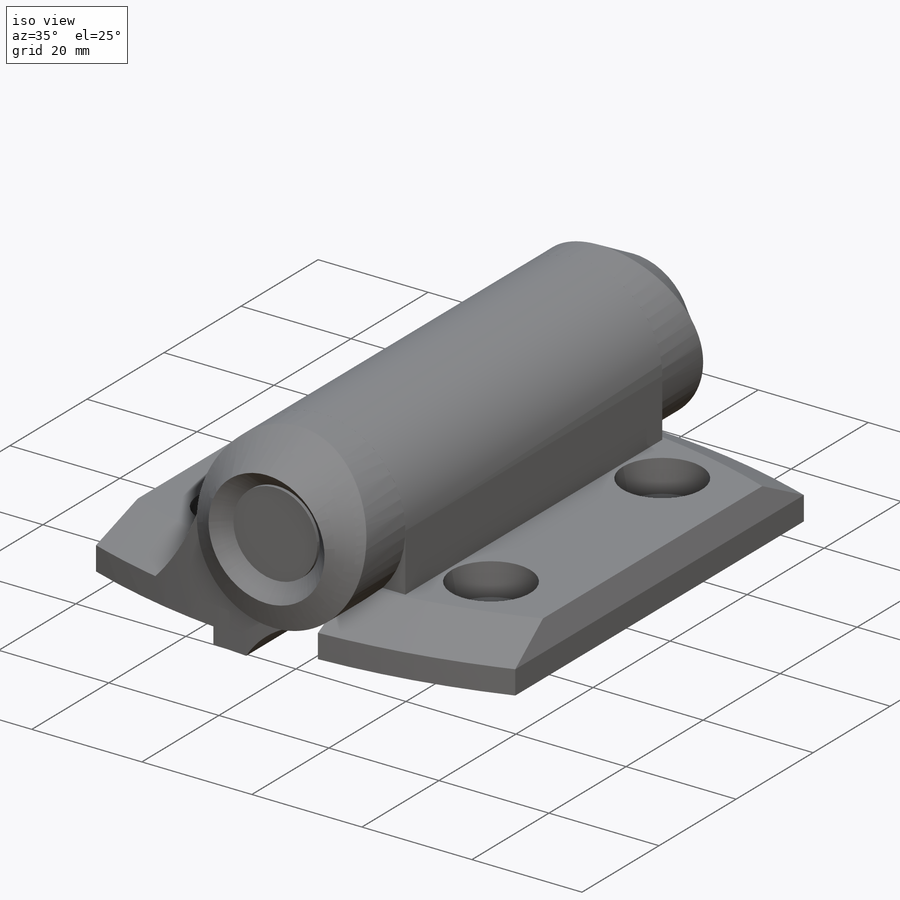
[diagram: iso view]
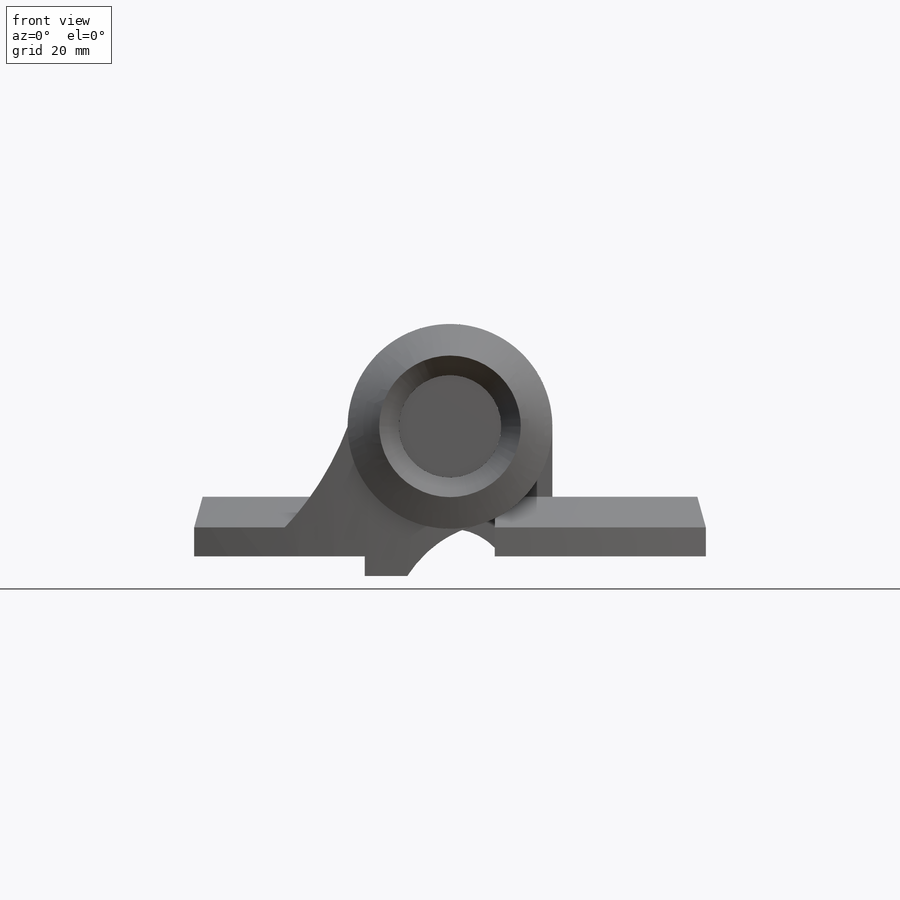
[diagram: front view]
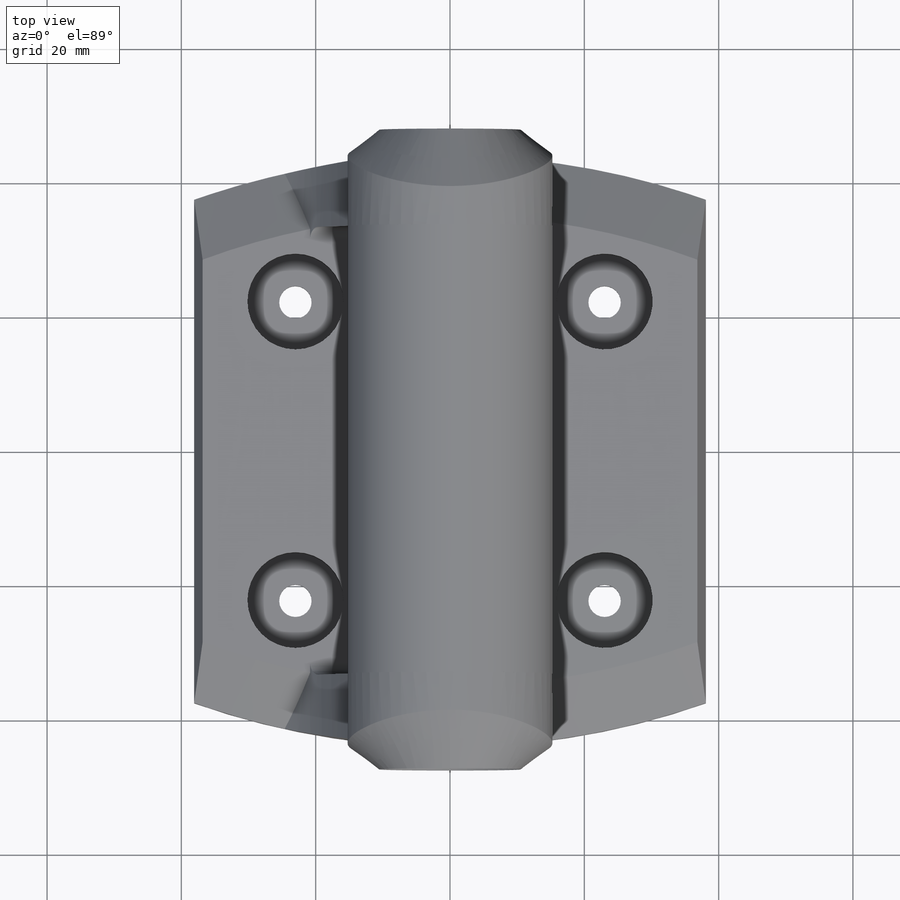
[diagram: top view]
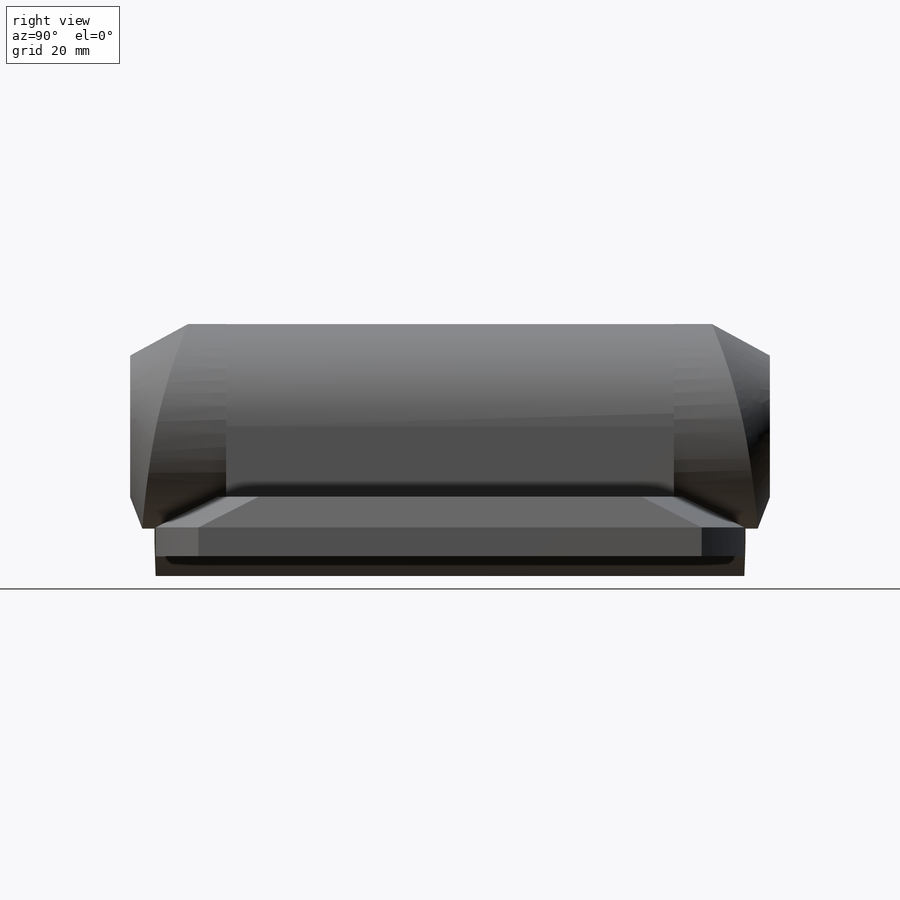
[diagram: right view]
SOLIDWORKS PART (.sldprt)
format: sldprt  version: not decoded by parser v0  size: 1,590,784 bytes
history: native  units: mm
features: sketch x25, cut_extrude x11, extrude x7, chamfer x4, mirror x3, delete_body x2, boolean_combine x2, material x1, fillet x1, surface_op x1, move_body x1 + 1 further entry (+15 scaffold rows collapsed)
feature tree (74):
  scaffold x15  (default folders/planes/origin — collapsed)
  material  "Material <not specified>"
  "Design Table"
  sketch  "Sketch1"  dims[c1.dia=30.48mm c1.pin dia=15.24mm c1.D11=44.45mm c1.D2=8.89mm c1.D3=34.6075mm c1.D4=38.1mm c1.D5=31.4325mm c1.D6=19.8755mm c1.D7=6.35mm c1.D8=25.4mm c1.D9=76.2mm c1.D10=~3.93192mm c2.D4=2.921mm c2.D12=1.27mm]
  sketch  "Sketch2"
  extrude  "Boss-Extrude1"  Depth=95.25mm
  sketch  "Sketch3"
  extrude  "Boss-Extrude2"  [1 undecoded]
  sketch  "Sketch4"
  cut_extrude  "Cut-Extrude1"  Depth=66.675mm
  sketch  "Sketch5"
  cut_extrude  "Cut-Extrude2"  [1 undecoded]
  cut_extrude  "Cut-Extrude3"  [1 undecoded]
  sketch  "Sketch5<3>"
  sketch  "Sketch7"  dims[D1=0.0mm]
  cut_extrude  "Cut-Extrude4"  Depth=3.6195mm
  cut_extrude  "Cut-Extrude5"  [1 undecoded]
  sketch  "Sketch7<2>"  dims[D1=3.6195mm]
  sketch  "Sketch9"  dims[D1=0.0mm]
  sketch  "Sketch10"  dims[D1=0.0mm]
  sketch  "Sketch8"  dims[D1=6.5405mm]
  cut_extrude  "Cut-Extrude6"  [1 undecoded]
  extrude  "Boss-Extrude3"  [1 undecoded]
  extrude  "Boss-Extrude4"  [1 undecoded]
  chamfer  "Chamfer1"  Distance=8.89mm
  chamfer  "Chamfer2"  Distance=8.89mm
  chamfer  "Chamfer3"  Distance=1.27mm
  chamfer  "Chamfer4"  Distance=4.572mm
  sketch  "Sketch11"
  extrude  "Boss-Extrude5"  [1 undecoded]
  extrude  "Boss-Extrude6"  [1 undecoded]
  sketch  "Sketch11<2>"
  fillet  "Fillet4"  Radius=1.778mm
  sketch  "Sketch25"  dims[D1=9.8425mm]
  surface_op  "Surface-Extrude1"
  delete_body  "Body-Delete1"
  mirror  "Mirror5"
  sketch  "Sketch12"  dims[large hole dia=14.2875mm D2=46.0375mm D3=44.45mm]
  cut_extrude  "Cut-Extrude7"  Depth=5.8928mm large hole dp=5.8928mm
  sketch  "Sketch13"  dims[small hole dia=4.826mm]
  cut_extrude  "Cut-Extrude8"  [1 undecoded]
  sketch  "Sketch17"  dims[D1=21.082mm]
  sketch  "Sketch18"
  sketch  "Sketch14"  dims[D1=8.636mm D2=4.1656mm]
  sketch  "Sketch15"  dims[D1=0.762mm]
  sketch  "Sketch16"
  mirror  "Mirror3"
  mirror  "Mirror4"
  boolean_combine  "Combine2"
  sketch  "Sketch21"  dims[D1=0.0mm]
  cut_extrude  "Cut-Extrude11"  Depth=5.08mm
  sketch  "Sketch23"  dims[D1=0.0mm]
  cut_extrude  "Cut-Extrude12"  Depth=5.08mm
  sketch  "Sketch24"
  cut_extrude  "Cut-Extrude13"  [1 undecoded]
  extrude  "Boss-Extrude7"  [1 undecoded]
  sketch  "Sketch24<2>"
  boolean_combine  "Move Face4"
  move_body  "Body-Move/Copy1"
  delete_body  "Body-Delete2"
decode coverage: 25 of 57 modeling features carry decoded parameters; 1 rows unclassified (native names shown)
note: ~ marks probable driven/reference dimensions
note: 12 parameter values undecoded
summary: no parameter record found for 12 features
note: suppression state not decoded; provenance and decode notes live in map.json
